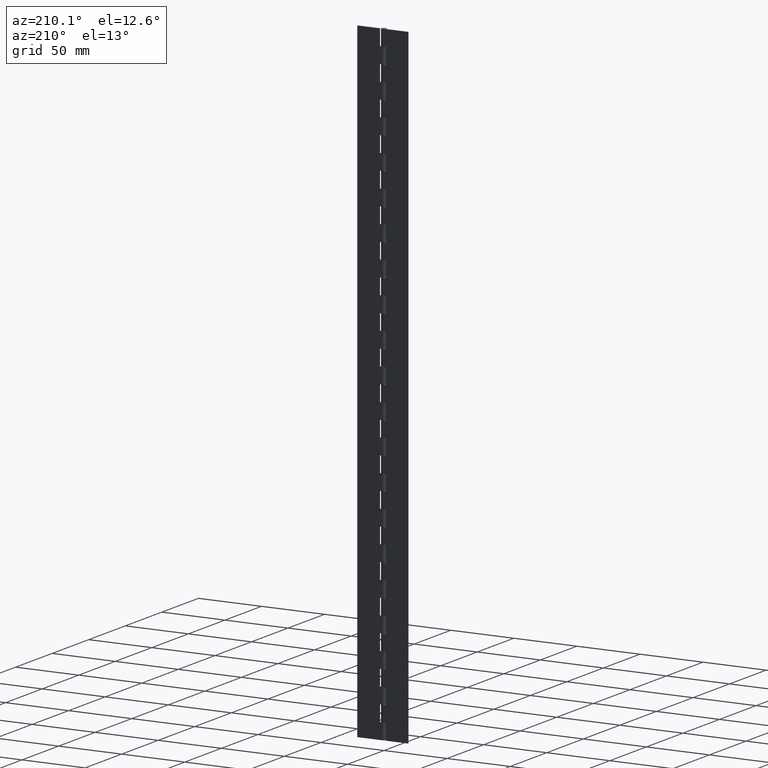
[diagram: clean part render]
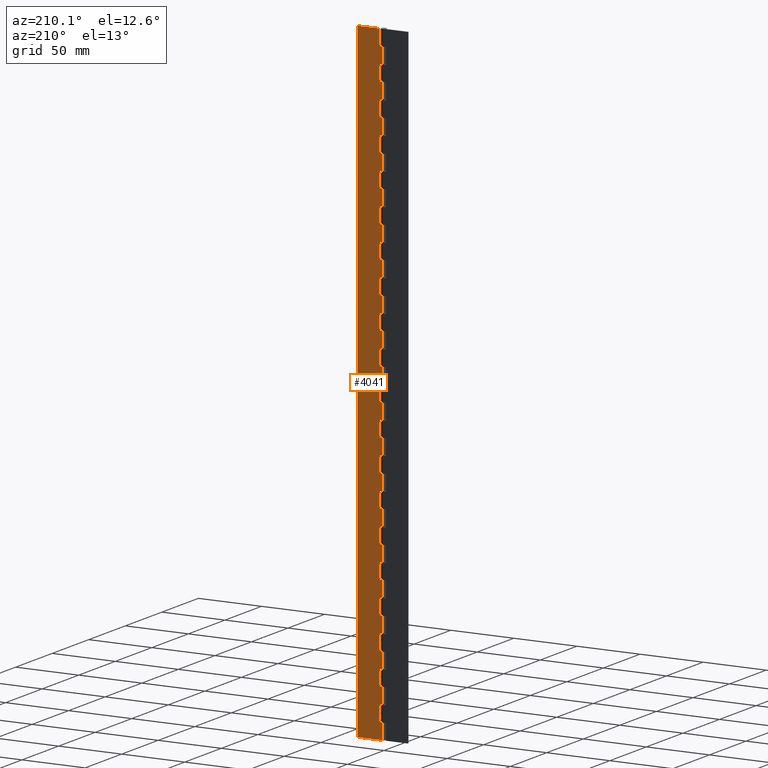
[diagram: same view with one face highlighted and labeled with its STEP entity id]
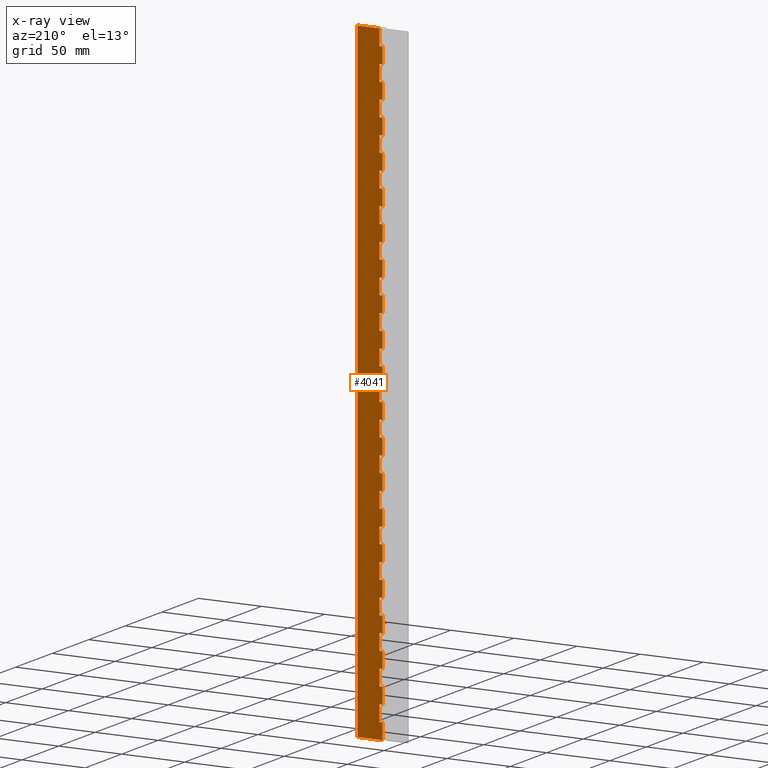
[diagram: x-ray of the same camera — body ghosted, the highlighted face saturated]
A machine part, auxiliary view. The second image highlights one B-rep face of the part: STEP entity #4041.
The next image is the same camera in x-ray: the body ghosted, the highlighted face saturated — about 0% of this face is hidden behind the body in this view.
In plain terms, the highlighted face is a freeform B-spline surface patch.
Its self-contained STEP definition (entity closure, byte-faithful):
#49=CARTESIAN_POINT('',(0.0,2.0,487.500000000000000));
#50=VERTEX_POINT('',#49);
#107=CARTESIAN_POINT('',(2.500000000000000,2.0,487.500000000000000));
#108=VERTEX_POINT('',#107);
#114=CARTESIAN_POINT('',(2.500000000000000,2.0,487.500000000000000));
#115=CARTESIAN_POINT('',(0.0,2.0,487.500000000000000));
#116=QUASI_UNIFORM_CURVE('',1,(#114,#115),.UNSPECIFIED.,.F.,.U.);
#117=EDGE_CURVE('',#108,#50,#116,.T.);
#129=CARTESIAN_POINT('',(2.500000000000000,2.0,500.0));
#130=VERTEX_POINT('',#129);
#136=CARTESIAN_POINT('',(2.500000000000000,2.0,500.0));
#137=CARTESIAN_POINT('',(2.500000000000000,2.0,487.500000000000000));
#138=QUASI_UNIFORM_CURVE('',1,(#136,#137),.UNSPECIFIED.,.F.,.U.);
#139=EDGE_CURVE('',#130,#108,#138,.T.);
#155=CARTESIAN_POINT('',(0.0,2.0,462.500000000000000));
#156=VERTEX_POINT('',#155);
#213=CARTESIAN_POINT('',(2.500000000000000,2.0,462.500000000000000));
#214=VERTEX_POINT('',#213);
#220=CARTESIAN_POINT('',(2.500000000000000,2.0,462.500000000000000));
#221=CARTESIAN_POINT('',(0.0,2.0,462.500000000000000));
#222=QUASI_UNIFORM_CURVE('',1,(#220,#221),.UNSPECIFIED.,.F.,.U.);
#223=EDGE_CURVE('',#214,#156,#222,.T.);
#235=CARTESIAN_POINT('',(0.0,2.0,475.0));
#236=VERTEX_POINT('',#235);
#256=CARTESIAN_POINT('',(2.500000000000000,2.0,475.0));
#257=VERTEX_POINT('',#256);
#258=CARTESIAN_POINT('',(0.0,2.0,475.0));
#259=CARTESIAN_POINT('',(2.500000000000000,2.0,475.0));
#260=QUASI_UNIFORM_CURVE('',1,(#258,#259),.UNSPECIFIED.,.F.,.U.);
#261=EDGE_CURVE('',#236,#257,#260,.T.);
#312=CARTESIAN_POINT('',(2.500000000000000,2.0,475.0));
#313=CARTESIAN_POINT('',(2.500000000000000,2.0,462.500000000000000));
#314=QUASI_UNIFORM_CURVE('',1,(#312,#313),.UNSPECIFIED.,.F.,.U.);
#315=EDGE_CURVE('',#257,#214,#314,.T.);
#331=CARTESIAN_POINT('',(0.0,2.0,437.500000000000000));
#332=VERTEX_POINT('',#331);
#389=CARTESIAN_POINT('',(2.500000000000000,2.0,437.500000000000000));
#390=VERTEX_POINT('',#389);
#396=CARTESIAN_POINT('',(2.500000000000000,2.0,437.500000000000000));
#397=CARTESIAN_POINT('',(0.0,2.0,437.500000000000000));
#398=QUASI_UNIFORM_CURVE('',1,(#396,#397),.UNSPECIFIED.,.F.,.U.);
#399=EDGE_CURVE('',#390,#332,#398,.T.);
#411=CARTESIAN_POINT('',(0.0,2.0,450.0));
#412=VERTEX_POINT('',#411);
#432=CARTESIAN_POINT('',(2.500000000000000,2.0,450.0));
#433=VERTEX_POINT('',#432);
#434=CARTESIAN_POINT('',(0.0,2.0,450.0));
#435=CARTESIAN_POINT('',(2.500000000000000,2.0,450.0));
#436=QUASI_UNIFORM_CURVE('',1,(#434,#435),.UNSPECIFIED.,.F.,.U.);
#437=EDGE_CURVE('',#412,#433,#436,.T.);
#488=CARTESIAN_POINT('',(2.500000000000000,2.0,450.0));
#489=CARTESIAN_POINT('',(2.500000000000000,2.0,437.500000000000000));
#490=QUASI_UNIFORM_CURVE('',1,(#488,#489),.UNSPECIFIED.,.F.,.U.);
#491=EDGE_CURVE('',#433,#390,#490,.T.);
#507=CARTESIAN_POINT('',(0.0,2.0,412.500000000000000));
#508=VERTEX_POINT('',#507);
#565=CARTESIAN_POINT('',(2.500000000000000,2.0,412.500000000000000));
#566=VERTEX_POINT('',#565);
#572=CARTESIAN_POINT('',(2.500000000000000,2.0,412.500000000000000));
#573=CARTESIAN_POINT('',(0.0,2.0,412.500000000000000));
#574=QUASI_UNIFORM_CURVE('',1,(#572,#573),.UNSPECIFIED.,.F.,.U.);
#575=EDGE_CURVE('',#566,#508,#574,.T.);
#587=CARTESIAN_POINT('',(0.0,2.0,425.0));
#588=VERTEX_POINT('',#587);
#608=CARTESIAN_POINT('',(2.500000000000000,2.0,425.0));
#609=VERTEX_POINT('',#608);
#610=CARTESIAN_POINT('',(0.0,2.0,425.0));
#611=CARTESIAN_POINT('',(2.500000000000000,2.0,425.0));
#612=QUASI_UNIFORM_CURVE('',1,(#610,#611),.UNSPECIFIED.,.F.,.U.);
#613=EDGE_CURVE('',#588,#609,#612,.T.);
#664=CARTESIAN_POINT('',(2.500000000000000,2.0,425.0));
#665=CARTESIAN_POINT('',(2.500000000000000,2.0,412.500000000000000));
#666=QUASI_UNIFORM_CURVE('',1,(#664,#665),.UNSPECIFIED.,.F.,.U.);
#667=EDGE_CURVE('',#609,#566,#666,.T.);
#683=CARTESIAN_POINT('',(0.0,2.0,387.500000000000000));
#684=VERTEX_POINT('',#683);
#741=CARTESIAN_POINT('',(2.500000000000000,2.0,387.500000000000000));
#742=VERTEX_POINT('',#741);
#748=CARTESIAN_POINT('',(2.500000000000000,2.0,387.500000000000000));
#749=CARTESIAN_POINT('',(0.0,2.0,387.500000000000000));
#750=QUASI_UNIFORM_CURVE('',1,(#748,#749),.UNSPECIFIED.,.F.,.U.);
#751=EDGE_CURVE('',#742,#684,#750,.T.);
#763=CARTESIAN_POINT('',(0.0,2.0,400.0));
#764=VERTEX_POINT('',#763);
#784=CARTESIAN_POINT('',(2.500000000000000,2.0,400.0));
#785=VERTEX_POINT('',#784);
#786=CARTESIAN_POINT('',(0.0,2.0,400.0));
#787=CARTESIAN_POINT('',(2.500000000000000,2.0,400.0));
#788=QUASI_UNIFORM_CURVE('',1,(#786,#787),.UNSPECIFIED.,.F.,.U.);
#789=EDGE_CURVE('',#764,#785,#788,.T.);
#840=CARTESIAN_POINT('',(2.500000000000000,2.0,400.0));
#841=CARTESIAN_POINT('',(2.500000000000000,2.0,387.500000000000000));
#842=QUASI_UNIFORM_CURVE('',1,(#840,#841),.UNSPECIFIED.,.F.,.U.);
#843=EDGE_CURVE('',#785,#742,#842,.T.);
#859=CARTESIAN_POINT('',(0.0,2.0,362.500000000000000));
#860=VERTEX_POINT('',#859);
#917=CARTESIAN_POINT('',(2.500000000000000,2.0,362.500000000000000));
#918=VERTEX_POINT('',#917);
#924=CARTESIAN_POINT('',(2.500000000000000,2.0,362.500000000000000));
#925=CARTESIAN_POINT('',(0.0,2.0,362.500000000000000));
#926=QUASI_UNIFORM_CURVE('',1,(#924,#925),.UNSPECIFIED.,.F.,.U.);
#927=EDGE_CURVE('',#918,#860,#926,.T.);
#939=CARTESIAN_POINT('',(0.0,2.0,375.0));
#940=VERTEX_POINT('',#939);
#960=CARTESIAN_POINT('',(2.500000000000000,2.0,375.0));
#961=VERTEX_POINT('',#960);
#962=CARTESIAN_POINT('',(0.0,2.0,375.0));
#963=CARTESIAN_POINT('',(2.500000000000000,2.0,375.0));
#964=QUASI_UNIFORM_CURVE('',1,(#962,#963),.UNSPECIFIED.,.F.,.U.);
#965=EDGE_CURVE('',#940,#961,#964,.T.);
#1016=CARTESIAN_POINT('',(2.500000000000000,2.0,375.0));
#1017=CARTESIAN_POINT('',(2.500000000000000,2.0,362.500000000000000));
#1018=QUASI_UNIFORM_CURVE('',1,(#1016,#1017),.UNSPECIFIED.,.F.,.U.);
#1019=EDGE_CURVE('',#961,#918,#1018,.T.);
#1035=CARTESIAN_POINT('',(0.0,2.0,337.500000000000000));
#1036=VERTEX_POINT('',#1035);
#1093=CARTESIAN_POINT('',(2.500000000000000,2.0,337.500000000000000));
#1094=VERTEX_POINT('',#1093);
#1100=CARTESIAN_POINT('',(2.500000000000000,2.0,337.500000000000000));
#1101=CARTESIAN_POINT('',(0.0,2.0,337.500000000000000));
#1102=QUASI_UNIFORM_CURVE('',1,(#1100,#1101),.UNSPECIFIED.,.F.,.U.);
#1103=EDGE_CURVE('',#1094,#1036,#1102,.T.);
#1115=CARTESIAN_POINT('',(0.0,2.0,350.0));
#1116=VERTEX_POINT('',#1115);
#1136=CARTESIAN_POINT('',(2.500000000000000,2.0,350.0));
#1137=VERTEX_POINT('',#1136);
#1138=CARTESIAN_POINT('',(0.0,2.0,350.0));
#1139=CARTESIAN_POINT('',(2.500000000000000,2.0,350.0));
#1140=QUASI_UNIFORM_CURVE('',1,(#1138,#1139),.UNSPECIFIED.,.F.,.U.);
#1141=EDGE_CURVE('',#1116,#1137,#1140,.T.);
#1192=CARTESIAN_POINT('',(2.500000000000000,2.0,350.0));
#1193=CARTESIAN_POINT('',(2.500000000000000,2.0,337.500000000000000));
#1194=QUASI_UNIFORM_CURVE('',1,(#1192,#1193),.UNSPECIFIED.,.F.,.U.);
#1195=EDGE_CURVE('',#1137,#1094,#1194,.T.);
#1211=CARTESIAN_POINT('',(0.0,2.0,312.500000000000000));
#1212=VERTEX_POINT('',#1211);
#1269=CARTESIAN_POINT('',(2.500000000000000,2.0,312.500000000000000));
#1270=VERTEX_POINT('',#1269);
#1276=CARTESIAN_POINT('',(2.500000000000000,2.0,312.500000000000000));
#1277=CARTESIAN_POINT('',(0.0,2.0,312.500000000000000));
#1278=QUASI_UNIFORM_CURVE('',1,(#1276,#1277),.UNSPECIFIED.,.F.,.U.);
#1279=EDGE_CURVE('',#1270,#1212,#1278,.T.);
#1291=CARTESIAN_POINT('',(0.0,2.0,325.0));
#1292=VERTEX_POINT('',#1291);
#1312=CARTESIAN_POINT('',(2.500000000000000,2.0,325.0));
#1313=VERTEX_POINT('',#1312);
#1314=CARTESIAN_POINT('',(0.0,2.0,325.0));
#1315=CARTESIAN_POINT('',(2.500000000000000,2.0,325.0));
#1316=QUASI_UNIFORM_CURVE('',1,(#1314,#1315),.UNSPECIFIED.,.F.,.U.);
#1317=EDGE_CURVE('',#1292,#1313,#1316,.T.);
#1368=CARTESIAN_POINT('',(2.500000000000000,2.0,325.0));
#1369=CARTESIAN_POINT('',(2.500000000000000,2.0,312.500000000000000));
#1370=QUASI_UNIFORM_CURVE('',1,(#1368,#1369),.UNSPECIFIED.,.F.,.U.);
#1371=EDGE_CURVE('',#1313,#1270,#1370,.T.);
#1387=CARTESIAN_POINT('',(0.0,2.0,287.500000000000000));
#1388=VERTEX_POINT('',#1387);
#1445=CARTESIAN_POINT('',(2.500000000000000,2.0,287.500000000000000));
#1446=VERTEX_POINT('',#1445);
#1452=CARTESIAN_POINT('',(2.500000000000000,2.0,287.500000000000000));
#1453=CARTESIAN_POINT('',(0.0,2.0,287.500000000000000));
#1454=QUASI_UNIFORM_CURVE('',1,(#1452,#1453),.UNSPECIFIED.,.F.,.U.);
#1455=EDGE_CURVE('',#1446,#1388,#1454,.T.);
#1467=CARTESIAN_POINT('',(0.0,2.0,300.0));
#1468=VERTEX_POINT('',#1467);
#1488=CARTESIAN_POINT('',(2.500000000000000,2.0,300.0));
#1489=VERTEX_POINT('',#1488);
#1490=CARTESIAN_POINT('',(0.0,2.0,300.0));
#1491=CARTESIAN_POINT('',(2.500000000000000,2.0,300.0));
#1492=QUASI_UNIFORM_CURVE('',1,(#1490,#1491),.UNSPECIFIED.,.F.,.U.);
#1493=EDGE_CURVE('',#1468,#1489,#1492,.T.);
#1544=CARTESIAN_POINT('',(2.500000000000000,2.0,300.0));
#1545=CARTESIAN_POINT('',(2.500000000000000,2.0,287.500000000000000));
#1546=QUASI_UNIFORM_CURVE('',1,(#1544,#1545),.UNSPECIFIED.,.F.,.U.);
#1547=EDGE_CURVE('',#1489,#1446,#1546,.T.);
#1563=CARTESIAN_POINT('',(0.0,2.0,262.500000000000000));
#1564=VERTEX_POINT('',#1563);
#1621=CARTESIAN_POINT('',(2.500000000000000,2.0,262.500000000000000));
#1622=VERTEX_POINT('',#1621);
#1628=CARTESIAN_POINT('',(2.500000000000000,2.0,262.500000000000000));
#1629=CARTESIAN_POINT('',(0.0,2.0,262.500000000000000));
#1630=QUASI_UNIFORM_CURVE('',1,(#1628,#1629),.UNSPECIFIED.,.F.,.U.);
#1631=EDGE_CURVE('',#1622,#1564,#1630,.T.);
#1643=CARTESIAN_POINT('',(0.0,2.0,275.0));
#1644=VERTEX_POINT('',#1643);
#1664=CARTESIAN_POINT('',(2.500000000000000,2.0,275.0));
#1665=VERTEX_POINT('',#1664);
#1666=CARTESIAN_POINT('',(0.0,2.0,275.0));
#1667=CARTESIAN_POINT('',(2.500000000000000,2.0,275.0));
#1668=QUASI_UNIFORM_CURVE('',1,(#1666,#1667),.UNSPECIFIED.,.F.,.U.);
#1669=EDGE_CURVE('',#1644,#1665,#1668,.T.);
#1720=CARTESIAN_POINT('',(2.500000000000000,2.0,275.0));
#1721=CARTESIAN_POINT('',(2.500000000000000,2.0,262.500000000000000));
#1722=QUASI_UNIFORM_CURVE('',1,(#1720,#1721),.UNSPECIFIED.,.F.,.U.);
#1723=EDGE_CURVE('',#1665,#1622,#1722,.T.);
#1739=CARTESIAN_POINT('',(0.0,2.0,237.500000000000000));
#1740=VERTEX_POINT('',#1739);
#1797=CARTESIAN_POINT('',(2.500000000000000,2.0,237.500000000000000));
#1798=VERTEX_POINT('',#1797);
#1804=CARTESIAN_POINT('',(2.500000000000000,2.0,237.500000000000000));
#1805=CARTESIAN_POINT('',(0.0,2.0,237.500000000000000));
#1806=QUASI_UNIFORM_CURVE('',1,(#1804,#1805),.UNSPECIFIED.,.F.,.U.);
#1807=EDGE_CURVE('',#1798,#1740,#1806,.T.);
#1819=CARTESIAN_POINT('',(0.0,2.0,250.0));
#1820=VERTEX_POINT('',#1819);
#1840=CARTESIAN_POINT('',(2.500000000000000,2.0,250.0));
#1841=VERTEX_POINT('',#1840);
#1842=CARTESIAN_POINT('',(0.0,2.0,250.0));
#1843=CARTESIAN_POINT('',(2.500000000000000,2.0,250.0));
#1844=QUASI_UNIFORM_CURVE('',1,(#1842,#1843),.UNSPECIFIED.,.F.,.U.);
#1845=EDGE_CURVE('',#1820,#1841,#1844,.T.);
#1896=CARTESIAN_POINT('',(2.500000000000000,2.0,250.0));
#1897=CARTESIAN_POINT('',(2.500000000000000,2.0,237.500000000000000));
#1898=QUASI_UNIFORM_CURVE('',1,(#1896,#1897),.UNSPECIFIED.,.F.,.U.);
#1899=EDGE_CURVE('',#1841,#1798,#1898,.T.);
#1915=CARTESIAN_POINT('',(0.0,2.0,212.500000000000000));
#1916=VERTEX_POINT('',#1915);
#1973=CARTESIAN_POINT('',(2.500000000000000,2.0,212.500000000000000));
#1974=VERTEX_POINT('',#1973);
#1980=CARTESIAN_POINT('',(2.500000000000000,2.0,212.500000000000000));
#1981=CARTESIAN_POINT('',(0.0,2.0,212.500000000000000));
#1982=QUASI_UNIFORM_CURVE('',1,(#1980,#1981),.UNSPECIFIED.,.F.,.U.);
#1983=EDGE_CURVE('',#1974,#1916,#1982,.T.);
#1995=CARTESIAN_POINT('',(0.0,2.0,225.0));
#1996=VERTEX_POINT('',#1995);
#2016=CARTESIAN_POINT('',(2.500000000000000,2.0,225.0));
#2017=VERTEX_POINT('',#2016);
#2018=CARTESIAN_POINT('',(0.0,2.0,225.0));
#2019=CARTESIAN_POINT('',(2.500000000000000,2.0,225.0));
#2020=QUASI_UNIFORM_CURVE('',1,(#2018,#2019),.UNSPECIFIED.,.F.,.U.);
#2021=EDGE_CURVE('',#1996,#2017,#2020,.T.);
#2072=CARTESIAN_POINT('',(2.500000000000000,2.0,225.0));
#2073=CARTESIAN_POINT('',(2.500000000000000,2.0,212.500000000000000));
#2074=QUASI_UNIFORM_CURVE('',1,(#2072,#2073),.UNSPECIFIED.,.F.,.U.);
#2075=EDGE_CURVE('',#2017,#1974,#2074,.T.);
#2091=CARTESIAN_POINT('',(0.0,2.0,187.500000000000000));
#2092=VERTEX_POINT('',#2091);
#2149=CARTESIAN_POINT('',(2.500000000000000,2.0,187.500000000000000));
#2150=VERTEX_POINT('',#2149);
#2156=CARTESIAN_POINT('',(2.500000000000000,2.0,187.500000000000000));
#2157=CARTESIAN_POINT('',(0.0,2.0,187.500000000000000));
#2158=QUASI_UNIFORM_CURVE('',1,(#2156,#2157),.UNSPECIFIED.,.F.,.U.);
#2159=EDGE_CURVE('',#2150,#2092,#2158,.T.);
#2171=CARTESIAN_POINT('',(0.0,2.0,200.0));
#2172=VERTEX_POINT('',#2171);
#2192=CARTESIAN_POINT('',(2.500000000000000,2.0,200.0));
#2193=VERTEX_POINT('',#2192);
#2194=CARTESIAN_POINT('',(0.0,2.0,200.0));
#2195=CARTESIAN_POINT('',(2.500000000000000,2.0,200.0));
#2196=QUASI_UNIFORM_CURVE('',1,(#2194,#2195),.UNSPECIFIED.,.F.,.U.);
#2197=EDGE_CURVE('',#2172,#2193,#2196,.T.);
#2248=CARTESIAN_POINT('',(2.500000000000000,2.0,200.0));
#2249=CARTESIAN_POINT('',(2.500000000000000,2.0,187.500000000000000));
#2250=QUASI_UNIFORM_CURVE('',1,(#2248,#2249),.UNSPECIFIED.,.F.,.U.);
#2251=EDGE_CURVE('',#2193,#2150,#2250,.T.);
#2267=CARTESIAN_POINT('',(0.0,2.0,162.500000000000000));
#2268=VERTEX_POINT('',#2267);
#2325=CARTESIAN_POINT('',(2.500000000000000,2.0,162.500000000000000));
#2326=VERTEX_POINT('',#2325);
#2332=CARTESIAN_POINT('',(2.500000000000000,2.0,162.500000000000000));
#2333=CARTESIAN_POINT('',(0.0,2.0,162.500000000000000));
#2334=QUASI_UNIFORM_CURVE('',1,(#2332,#2333),.UNSPECIFIED.,.F.,.U.);
#2335=EDGE_CURVE('',#2326,#2268,#2334,.T.);
#2347=CARTESIAN_POINT('',(0.0,2.0,175.0));
#2348=VERTEX_POINT('',#2347);
#2368=CARTESIAN_POINT('',(2.500000000000000,2.0,175.0));
#2369=VERTEX_POINT('',#2368);
#2370=CARTESIAN_POINT('',(0.0,2.0,175.0));
#2371=CARTESIAN_POINT('',(2.500000000000000,2.0,175.0));
#2372=QUASI_UNIFORM_CURVE('',1,(#2370,#2371),.UNSPECIFIED.,.F.,.U.);
#2373=EDGE_CURVE('',#2348,#2369,#2372,.T.);
#2424=CARTESIAN_POINT('',(2.500000000000000,2.0,175.0));
#2425=CARTESIAN_POINT('',(2.500000000000000,2.0,162.500000000000000));
#2426=QUASI_UNIFORM_CURVE('',1,(#2424,#2425),.UNSPECIFIED.,.F.,.U.);
#2427=EDGE_CURVE('',#2369,#2326,#2426,.T.);
#2443=CARTESIAN_POINT('',(0.0,2.0,137.500000000000000));
#2444=VERTEX_POINT('',#2443);
#2501=CARTESIAN_POINT('',(2.500000000000000,2.0,137.500000000000000));
#2502=VERTEX_POINT('',#2501);
#2508=CARTESIAN_POINT('',(2.500000000000000,2.0,137.500000000000000));
#2509=CARTESIAN_POINT('',(0.0,2.0,137.500000000000000));
#2510=QUASI_UNIFORM_CURVE('',1,(#2508,#2509),.UNSPECIFIED.,.F.,.U.);
#2511=EDGE_CURVE('',#2502,#2444,#2510,.T.);
#2523=CARTESIAN_POINT('',(0.0,2.0,150.0));
#2524=VERTEX_POINT('',#2523);
#2544=CARTESIAN_POINT('',(2.500000000000000,2.0,150.0));
#2545=VERTEX_POINT('',#2544);
#2546=CARTESIAN_POINT('',(0.0,2.0,150.0));
#2547=CARTESIAN_POINT('',(2.500000000000000,2.0,150.0));
#2548=QUASI_UNIFORM_CURVE('',1,(#2546,#2547),.UNSPECIFIED.,.F.,.U.);
#2549=EDGE_CURVE('',#2524,#2545,#2548,.T.);
#2600=CARTESIAN_POINT('',(2.500000000000000,2.0,150.0));
#2601=CARTESIAN_POINT('',(2.500000000000000,2.0,137.500000000000000));
#2602=QUASI_UNIFORM_CURVE('',1,(#2600,#2601),.UNSPECIFIED.,.F.,.U.);
#2603=EDGE_CURVE('',#2545,#2502,#2602,.T.);
#2619=CARTESIAN_POINT('',(0.0,2.0,112.500000000000000));
#2620=VERTEX_POINT('',#2619);
#2677=CARTESIAN_POINT('',(2.500000000000000,2.0,112.500000000000000));
#2678=VERTEX_POINT('',#2677);
#2684=CARTESIAN_POINT('',(2.500000000000000,2.0,112.500000000000000));
#2685=CARTESIAN_POINT('',(0.0,2.0,112.500000000000000));
#2686=QUASI_UNIFORM_CURVE('',1,(#2684,#2685),.UNSPECIFIED.,.F.,.U.);
#2687=EDGE_CURVE('',#2678,#2620,#2686,.T.);
#2699=CARTESIAN_POINT('',(0.0,2.0,125.0));
#2700=VERTEX_POINT('',#2699);
#2720=CARTESIAN_POINT('',(2.500000000000000,2.0,125.0));
#2721=VERTEX_POINT('',#2720);
#2722=CARTESIAN_POINT('',(0.0,2.0,125.0));
#2723=CARTESIAN_POINT('',(2.500000000000000,2.0,125.0));
#2724=QUASI_UNIFORM_CURVE('',1,(#2722,#2723),.UNSPECIFIED.,.F.,.U.);
#2725=EDGE_CURVE('',#2700,#2721,#2724,.T.);
#2776=CARTESIAN_POINT('',(2.500000000000000,2.0,125.0));
#2777=CARTESIAN_POINT('',(2.500000000000000,2.0,112.500000000000000));
#2778=QUASI_UNIFORM_CURVE('',1,(#2776,#2777),.UNSPECIFIED.,.F.,.U.);
#2779=EDGE_CURVE('',#2721,#2678,#2778,.T.);
#2795=CARTESIAN_POINT('',(0.0,2.0,87.500000000000000));
#2796=VERTEX_POINT('',#2795);
#2853=CARTESIAN_POINT('',(2.500000000000000,2.0,87.500000000000000));
#2854=VERTEX_POINT('',#2853);
#2860=CARTESIAN_POINT('',(2.500000000000000,2.0,87.500000000000000));
#2861=CARTESIAN_POINT('',(0.0,2.0,87.500000000000000));
#2862=QUASI_UNIFORM_CURVE('',1,(#2860,#2861),.UNSPECIFIED.,.F.,.U.);
#2863=EDGE_CURVE('',#2854,#2796,#2862,.T.);
#2875=CARTESIAN_POINT('',(0.0,2.0,100.0));
#2876=VERTEX_POINT('',#2875);
#2896=CARTESIAN_POINT('',(2.500000000000000,2.0,100.0));
#2897=VERTEX_POINT('',#2896);
#2898=CARTESIAN_POINT('',(0.0,2.0,100.0));
#2899=CARTESIAN_POINT('',(2.500000000000000,2.0,100.0));
#2900=QUASI_UNIFORM_CURVE('',1,(#2898,#2899),.UNSPECIFIED.,.F.,.U.);
#2901=EDGE_CURVE('',#2876,#2897,#2900,.T.);
#2952=CARTESIAN_POINT('',(2.500000000000000,2.0,100.0));
#2953=CARTESIAN_POINT('',(2.500000000000000,2.0,87.500000000000000));
#2954=QUASI_UNIFORM_CURVE('',1,(#2952,#2953),.UNSPECIFIED.,.F.,.U.);
#2955=EDGE_CURVE('',#2897,#2854,#2954,.T.);
#2971=CARTESIAN_POINT('',(0.0,2.0,62.500000000000000));
#2972=VERTEX_POINT('',#2971);
#3029=CARTESIAN_POINT('',(2.500000000000000,2.0,62.500000000000000));
#3030=VERTEX_POINT('',#3029);
#3036=CARTESIAN_POINT('',(2.500000000000000,2.0,62.500000000000000));
#3037=CARTESIAN_POINT('',(0.0,2.0,62.500000000000000));
#3038=QUASI_UNIFORM_CURVE('',1,(#3036,#3037),.UNSPECIFIED.,.F.,.U.);
#3039=EDGE_CURVE('',#3030,#2972,#3038,.T.);
#3051=CARTESIAN_POINT('',(0.0,2.0,75.0));
#3052=VERTEX_POINT('',#3051);
#3072=CARTESIAN_POINT('',(2.500000000000000,2.0,75.0));
#3073=VERTEX_POINT('',#3072);
#3074=CARTESIAN_POINT('',(0.0,2.0,75.0));
#3075=CARTESIAN_POINT('',(2.500000000000000,2.0,75.0));
#3076=QUASI_UNIFORM_CURVE('',1,(#3074,#3075),.UNSPECIFIED.,.F.,.U.);
#3077=EDGE_CURVE('',#3052,#3073,#3076,.T.);
#3128=CARTESIAN_POINT('',(2.500000000000000,2.0,75.0));
#3129=CARTESIAN_POINT('',(2.500000000000000,2.0,62.500000000000000));
#3130=QUASI_UNIFORM_CURVE('',1,(#3128,#3129),.UNSPECIFIED.,.F.,.U.);
#3131=EDGE_CURVE('',#3073,#3030,#3130,.T.);
#3147=CARTESIAN_POINT('',(0.0,2.0,37.500000000000000));
#3148=VERTEX_POINT('',#3147);
#3205=CARTESIAN_POINT('',(2.500000000000000,2.0,37.500000000000000));
#3206=VERTEX_POINT('',#3205);
#3212=CARTESIAN_POINT('',(2.500000000000000,2.0,37.500000000000000));
#3213=CARTESIAN_POINT('',(0.0,2.0,37.500000000000000));
#3214=QUASI_UNIFORM_CURVE('',1,(#3212,#3213),.UNSPECIFIED.,.F.,.U.);
#3215=EDGE_CURVE('',#3206,#3148,#3214,.T.);
#3227=CARTESIAN_POINT('',(0.0,2.0,50.0));
#3228=VERTEX_POINT('',#3227);
#3248=CARTESIAN_POINT('',(2.500000000000000,2.0,50.0));
#3249=VERTEX_POINT('',#3248);
#3250=CARTESIAN_POINT('',(0.0,2.0,50.0));
#3251=CARTESIAN_POINT('',(2.500000000000000,2.0,50.0));
#3252=QUASI_UNIFORM_CURVE('',1,(#3250,#3251),.UNSPECIFIED.,.F.,.U.);
#3253=EDGE_CURVE('',#3228,#3249,#3252,.T.);
#3304=CARTESIAN_POINT('',(2.500000000000000,2.0,50.0));
#3305=CARTESIAN_POINT('',(2.500000000000000,2.0,37.500000000000000));
#3306=QUASI_UNIFORM_CURVE('',1,(#3304,#3305),.UNSPECIFIED.,.F.,.U.);
#3307=EDGE_CURVE('',#3249,#3206,#3306,.T.);
#3323=CARTESIAN_POINT('',(0.0,2.0,12.500000000000000));
#3324=VERTEX_POINT('',#3323);
#3381=CARTESIAN_POINT('',(2.500000000000000,2.0,12.500000000000000));
#3382=VERTEX_POINT('',#3381);
#3388=CARTESIAN_POINT('',(2.500000000000000,2.0,12.500000000000000));
#3389=CARTESIAN_POINT('',(0.0,2.0,12.500000000000000));
#3390=QUASI_UNIFORM_CURVE('',1,(#3388,#3389),.UNSPECIFIED.,.F.,.U.);
#3391=EDGE_CURVE('',#3382,#3324,#3390,.T.);
#3403=CARTESIAN_POINT('',(0.0,2.0,25.0));
#3404=VERTEX_POINT('',#3403);
#3424=CARTESIAN_POINT('',(2.500000000000000,2.0,25.0));
#3425=VERTEX_POINT('',#3424);
#3426=CARTESIAN_POINT('',(0.0,2.0,25.0));
#3427=CARTESIAN_POINT('',(2.500000000000000,2.0,25.0));
#3428=QUASI_UNIFORM_CURVE('',1,(#3426,#3427),.UNSPECIFIED.,.F.,.U.);
#3429=EDGE_CURVE('',#3404,#3425,#3428,.T.);
#3480=CARTESIAN_POINT('',(2.500000000000000,2.0,25.0));
#3481=CARTESIAN_POINT('',(2.500000000000000,2.0,12.500000000000000));
#3482=QUASI_UNIFORM_CURVE('',1,(#3480,#3481),.UNSPECIFIED.,.F.,.U.);
#3483=EDGE_CURVE('',#3425,#3382,#3482,.T.);
#3499=CARTESIAN_POINT('',(20.0,2.0,0.0));
#3500=VERTEX_POINT('',#3499);
#3501=CARTESIAN_POINT('',(-3.673819E-016,2.0,0.0));
#3502=VERTEX_POINT('',#3501);
#3503=CARTESIAN_POINT('',(20.0,2.0,0.0));
#3504=CARTESIAN_POINT('',(-3.673819E-016,2.0,0.0));
#3505=QUASI_UNIFORM_CURVE('',1,(#3503,#3504),.UNSPECIFIED.,.F.,.U.);
#3506=EDGE_CURVE('',#3500,#3502,#3505,.T.);
#3577=CARTESIAN_POINT('',(20.0,2.0,500.0));
#3578=VERTEX_POINT('',#3577);
#3579=CARTESIAN_POINT('',(20.0,2.0,500.0));
#3580=CARTESIAN_POINT('',(2.500000000000000,2.0,500.0));
#3581=QUASI_UNIFORM_CURVE('',1,(#3579,#3580),.UNSPECIFIED.,.F.,.U.);
#3582=EDGE_CURVE('',#3578,#130,#3581,.T.);
#3606=CARTESIAN_POINT('',(20.0,2.0,500.0));
#3607=CARTESIAN_POINT('',(20.0,2.0,0.0));
#3608=QUASI_UNIFORM_CURVE('',1,(#3606,#3607),.UNSPECIFIED.,.F.,.U.);
#3609=EDGE_CURVE('',#3578,#3500,#3608,.T.);
#3867=CARTESIAN_POINT('',(0.0,2.0,487.500000000000000));
#3868=CARTESIAN_POINT('',(0.0,2.0,475.0));
#3869=QUASI_UNIFORM_CURVE('',1,(#3867,#3868),.UNSPECIFIED.,.F.,.U.);
#3870=EDGE_CURVE('',#50,#236,#3869,.T.);
#3876=CARTESIAN_POINT('',(-0.998999961236120,2.0,524.974999030902950));
#3877=CARTESIAN_POINT('',(-0.998999961236120,2.0,-24.975012441948049));
#3878=CARTESIAN_POINT('',(20.999000497677919,2.0,524.974999030902950));
#3879=CARTESIAN_POINT('',(20.999000497677919,2.0,-24.975012441948049));
#3880=B_SPLINE_SURFACE_WITH_KNOTS('',1,1,((#3876,#3878),(#3877,#3879)),.UNSPECIFIED.,.F.,.F.,.U.,(2,2),(2,2),(0.0,549.950011472850970),(0.0,21.998000458914039),.UNSPECIFIED.);
#3881=ORIENTED_EDGE('',*,*,#117,.F.);
#3882=ORIENTED_EDGE('',*,*,#139,.F.);
#3883=ORIENTED_EDGE('',*,*,#3582,.F.);
#3884=ORIENTED_EDGE('',*,*,#3609,.T.);
#3885=ORIENTED_EDGE('',*,*,#3506,.T.);
#3886=CARTESIAN_POINT('',(0.0,2.0,12.500000000000000));
#3887=CARTESIAN_POINT('',(-3.673819E-016,2.0,0.0));
#3888=QUASI_UNIFORM_CURVE('',1,(#3886,#3887),.UNSPECIFIED.,.F.,.U.);
#3889=EDGE_CURVE('',#3324,#3502,#3888,.T.);
#3890=ORIENTED_EDGE('',*,*,#3889,.F.);
#3891=ORIENTED_EDGE('',*,*,#3391,.F.);
#3892=ORIENTED_EDGE('',*,*,#3483,.F.);
#3893=ORIENTED_EDGE('',*,*,#3429,.F.);
#3894=CARTESIAN_POINT('',(0.0,2.0,37.500000000000000));
#3895=CARTESIAN_POINT('',(0.0,2.0,25.0));
#3896=QUASI_UNIFORM_CURVE('',1,(#3894,#3895),.UNSPECIFIED.,.F.,.U.);
#3897=EDGE_CURVE('',#3148,#3404,#3896,.T.);
#3898=ORIENTED_EDGE('',*,*,#3897,.F.);
#3899=ORIENTED_EDGE('',*,*,#3215,.F.);
#3900=ORIENTED_EDGE('',*,*,#3307,.F.);
#3901=ORIENTED_EDGE('',*,*,#3253,.F.);
#3902=CARTESIAN_POINT('',(0.0,2.0,62.500000000000000));
#3903=CARTESIAN_POINT('',(0.0,2.0,50.0));
#3904=QUASI_UNIFORM_CURVE('',1,(#3902,#3903),.UNSPECIFIED.,.F.,.U.);
#3905=EDGE_CURVE('',#2972,#3228,#3904,.T.);
#3906=ORIENTED_EDGE('',*,*,#3905,.F.);
#3907=ORIENTED_EDGE('',*,*,#3039,.F.);
#3908=ORIENTED_EDGE('',*,*,#3131,.F.);
#3909=ORIENTED_EDGE('',*,*,#3077,.F.);
#3910=CARTESIAN_POINT('',(0.0,2.0,87.500000000000000));
#3911=CARTESIAN_POINT('',(0.0,2.0,75.0));
#3912=QUASI_UNIFORM_CURVE('',1,(#3910,#3911),.UNSPECIFIED.,.F.,.U.);
#3913=EDGE_CURVE('',#2796,#3052,#3912,.T.);
#3914=ORIENTED_EDGE('',*,*,#3913,.F.);
#3915=ORIENTED_EDGE('',*,*,#2863,.F.);
#3916=ORIENTED_EDGE('',*,*,#2955,.F.);
#3917=ORIENTED_EDGE('',*,*,#2901,.F.);
#3918=CARTESIAN_POINT('',(0.0,2.0,112.500000000000000));
#3919=CARTESIAN_POINT('',(0.0,2.0,100.0));
#3920=QUASI_UNIFORM_CURVE('',1,(#3918,#3919),.UNSPECIFIED.,.F.,.U.);
#3921=EDGE_CURVE('',#2620,#2876,#3920,.T.);
#3922=ORIENTED_EDGE('',*,*,#3921,.F.);
#3923=ORIENTED_EDGE('',*,*,#2687,.F.);
#3924=ORIENTED_EDGE('',*,*,#2779,.F.);
#3925=ORIENTED_EDGE('',*,*,#2725,.F.);
#3926=CARTESIAN_POINT('',(0.0,2.0,137.500000000000000));
#3927=CARTESIAN_POINT('',(0.0,2.0,125.0));
#3928=QUASI_UNIFORM_CURVE('',1,(#3926,#3927),.UNSPECIFIED.,.F.,.U.);
#3929=EDGE_CURVE('',#2444,#2700,#3928,.T.);
#3930=ORIENTED_EDGE('',*,*,#3929,.F.);
#3931=ORIENTED_EDGE('',*,*,#2511,.F.);
#3932=ORIENTED_EDGE('',*,*,#2603,.F.);
#3933=ORIENTED_EDGE('',*,*,#2549,.F.);
#3934=CARTESIAN_POINT('',(0.0,2.0,162.500000000000000));
#3935=CARTESIAN_POINT('',(0.0,2.0,150.0));
#3936=QUASI_UNIFORM_CURVE('',1,(#3934,#3935),.UNSPECIFIED.,.F.,.U.);
#3937=EDGE_CURVE('',#2268,#2524,#3936,.T.);
#3938=ORIENTED_EDGE('',*,*,#3937,.F.);
#3939=ORIENTED_EDGE('',*,*,#2335,.F.);
#3940=ORIENTED_EDGE('',*,*,#2427,.F.);
#3941=ORIENTED_EDGE('',*,*,#2373,.F.);
#3942=CARTESIAN_POINT('',(0.0,2.0,187.500000000000000));
#3943=CARTESIAN_POINT('',(0.0,2.0,175.0));
#3944=QUASI_UNIFORM_CURVE('',1,(#3942,#3943),.UNSPECIFIED.,.F.,.U.);
#3945=EDGE_CURVE('',#2092,#2348,#3944,.T.);
#3946=ORIENTED_EDGE('',*,*,#3945,.F.);
#3947=ORIENTED_EDGE('',*,*,#2159,.F.);
#3948=ORIENTED_EDGE('',*,*,#2251,.F.);
#3949=ORIENTED_EDGE('',*,*,#2197,.F.);
#3950=CARTESIAN_POINT('',(0.0,2.0,212.500000000000000));
#3951=CARTESIAN_POINT('',(0.0,2.0,200.0));
#3952=QUASI_UNIFORM_CURVE('',1,(#3950,#3951),.UNSPECIFIED.,.F.,.U.);
#3953=EDGE_CURVE('',#1916,#2172,#3952,.T.);
#3954=ORIENTED_EDGE('',*,*,#3953,.F.);
#3955=ORIENTED_EDGE('',*,*,#1983,.F.);
#3956=ORIENTED_EDGE('',*,*,#2075,.F.);
#3957=ORIENTED_EDGE('',*,*,#2021,.F.);
#3958=CARTESIAN_POINT('',(0.0,2.0,237.500000000000000));
#3959=CARTESIAN_POINT('',(0.0,2.0,225.0));
#3960=QUASI_UNIFORM_CURVE('',1,(#3958,#3959),.UNSPECIFIED.,.F.,.U.);
#3961=EDGE_CURVE('',#1740,#1996,#3960,.T.);
#3962=ORIENTED_EDGE('',*,*,#3961,.F.);
#3963=ORIENTED_EDGE('',*,*,#1807,.F.);
#3964=ORIENTED_EDGE('',*,*,#1899,.F.);
#3965=ORIENTED_EDGE('',*,*,#1845,.F.);
#3966=CARTESIAN_POINT('',(0.0,2.0,262.500000000000000));
#3967=CARTESIAN_POINT('',(0.0,2.0,250.0));
#3968=QUASI_UNIFORM_CURVE('',1,(#3966,#3967),.UNSPECIFIED.,.F.,.U.);
#3969=EDGE_CURVE('',#1564,#1820,#3968,.T.);
#3970=ORIENTED_EDGE('',*,*,#3969,.F.);
#3971=ORIENTED_EDGE('',*,*,#1631,.F.);
#3972=ORIENTED_EDGE('',*,*,#1723,.F.);
#3973=ORIENTED_EDGE('',*,*,#1669,.F.);
#3974=CARTESIAN_POINT('',(0.0,2.0,287.500000000000000));
#3975=CARTESIAN_POINT('',(0.0,2.0,275.0));
#3976=QUASI_UNIFORM_CURVE('',1,(#3974,#3975),.UNSPECIFIED.,.F.,.U.);
#3977=EDGE_CURVE('',#1388,#1644,#3976,.T.);
#3978=ORIENTED_EDGE('',*,*,#3977,.F.);
#3979=ORIENTED_EDGE('',*,*,#1455,.F.);
#3980=ORIENTED_EDGE('',*,*,#1547,.F.);
#3981=ORIENTED_EDGE('',*,*,#1493,.F.);
#3982=CARTESIAN_POINT('',(0.0,2.0,312.500000000000000));
#3983=CARTESIAN_POINT('',(0.0,2.0,300.0));
#3984=QUASI_UNIFORM_CURVE('',1,(#3982,#3983),.UNSPECIFIED.,.F.,.U.);
#3985=EDGE_CURVE('',#1212,#1468,#3984,.T.);
#3986=ORIENTED_EDGE('',*,*,#3985,.F.);
#3987=ORIENTED_EDGE('',*,*,#1279,.F.);
#3988=ORIENTED_EDGE('',*,*,#1371,.F.);
#3989=ORIENTED_EDGE('',*,*,#1317,.F.);
#3990=CARTESIAN_POINT('',(0.0,2.0,337.500000000000000));
#3991=CARTESIAN_POINT('',(0.0,2.0,325.0));
#3992=QUASI_UNIFORM_CURVE('',1,(#3990,#3991),.UNSPECIFIED.,.F.,.U.);
#3993=EDGE_CURVE('',#1036,#1292,#3992,.T.);
#3994=ORIENTED_EDGE('',*,*,#3993,.F.);
#3995=ORIENTED_EDGE('',*,*,#1103,.F.);
#3996=ORIENTED_EDGE('',*,*,#1195,.F.);
#3997=ORIENTED_EDGE('',*,*,#1141,.F.);
#3998=CARTESIAN_POINT('',(0.0,2.0,362.500000000000000));
#3999=CARTESIAN_POINT('',(0.0,2.0,350.0));
#4000=QUASI_UNIFORM_CURVE('',1,(#3998,#3999),.UNSPECIFIED.,.F.,.U.);
#4001=EDGE_CURVE('',#860,#1116,#4000,.T.);
#4002=ORIENTED_EDGE('',*,*,#4001,.F.);
#4003=ORIENTED_EDGE('',*,*,#927,.F.);
#4004=ORIENTED_EDGE('',*,*,#1019,.F.);
#4005=ORIENTED_EDGE('',*,*,#965,.F.);
#4006=CARTESIAN_POINT('',(0.0,2.0,387.500000000000000));
#4007=CARTESIAN_POINT('',(0.0,2.0,375.0));
#4008=QUASI_UNIFORM_CURVE('',1,(#4006,#4007),.UNSPECIFIED.,.F.,.U.);
#4009=EDGE_CURVE('',#684,#940,#4008,.T.);
#4010=ORIENTED_EDGE('',*,*,#4009,.F.);
#4011=ORIENTED_EDGE('',*,*,#751,.F.);
#4012=ORIENTED_EDGE('',*,*,#843,.F.);
#4013=ORIENTED_EDGE('',*,*,#789,.F.);
#4014=CARTESIAN_POINT('',(0.0,2.0,412.500000000000000));
#4015=CARTESIAN_POINT('',(0.0,2.0,400.0));
#4016=QUASI_UNIFORM_CURVE('',1,(#4014,#4015),.UNSPECIFIED.,.F.,.U.);
#4017=EDGE_CURVE('',#508,#764,#4016,.T.);
#4018=ORIENTED_EDGE('',*,*,#4017,.F.);
#4019=ORIENTED_EDGE('',*,*,#575,.F.);
#4020=ORIENTED_EDGE('',*,*,#667,.F.);
#4021=ORIENTED_EDGE('',*,*,#613,.F.);
#4022=CARTESIAN_POINT('',(0.0,2.0,437.500000000000000));
#4023=CARTESIAN_POINT('',(0.0,2.0,425.0));
#4024=QUASI_UNIFORM_CURVE('',1,(#4022,#4023),.UNSPECIFIED.,.F.,.U.);
#4025=EDGE_CURVE('',#332,#588,#4024,.T.);
#4026=ORIENTED_EDGE('',*,*,#4025,.F.);
#4027=ORIENTED_EDGE('',*,*,#399,.F.);
#4028=ORIENTED_EDGE('',*,*,#491,.F.);
#4029=ORIENTED_EDGE('',*,*,#437,.F.);
#4030=CARTESIAN_POINT('',(0.0,2.0,462.500000000000000));
#4031=CARTESIAN_POINT('',(0.0,2.0,450.0));
#4032=QUASI_UNIFORM_CURVE('',1,(#4030,#4031),.UNSPECIFIED.,.F.,.U.);
#4033=EDGE_CURVE('',#156,#412,#4032,.T.);
#4034=ORIENTED_EDGE('',*,*,#4033,.F.);
#4035=ORIENTED_EDGE('',*,*,#223,.F.);
#4036=ORIENTED_EDGE('',*,*,#315,.F.);
#4037=ORIENTED_EDGE('',*,*,#261,.F.);
#4038=ORIENTED_EDGE('',*,*,#3870,.F.);
#4039=EDGE_LOOP('',(#3881,#3882,#3883,#3884,#3885,#3890,#3891,#3892,#3893,#3898,#3899,#3900,#3901,#3906,#3907,#3908,#3909,#3914,#3915,#3916,#3917,#3922,#3923,#3924,#3925,#3930,#3931,#3932,#3933,#3938,#3939,#3940,#3941,#3946,#3947,#3948,#3949,#3954,#3955,#3956,#3957,#3962,#3963,#3964,#3965,#3970,#3971,#3972,#3973,#3978,#3979,#3980,#3981,#3986,#3987,#3988,#3989,#3994,#3995,#3996,#3997,#4002,#4003,#4004,#4005,#4010,#4011,#4012,#4013,#4018,#4019,#4020,#4021,#4026,#4027,#4028,#4029,#4034,#4035,#4036,#4037,#4038));
#4040=FACE_OUTER_BOUND('',#4039,.T.);
#4041=ADVANCED_FACE('',(#4040),#3880,.F.);